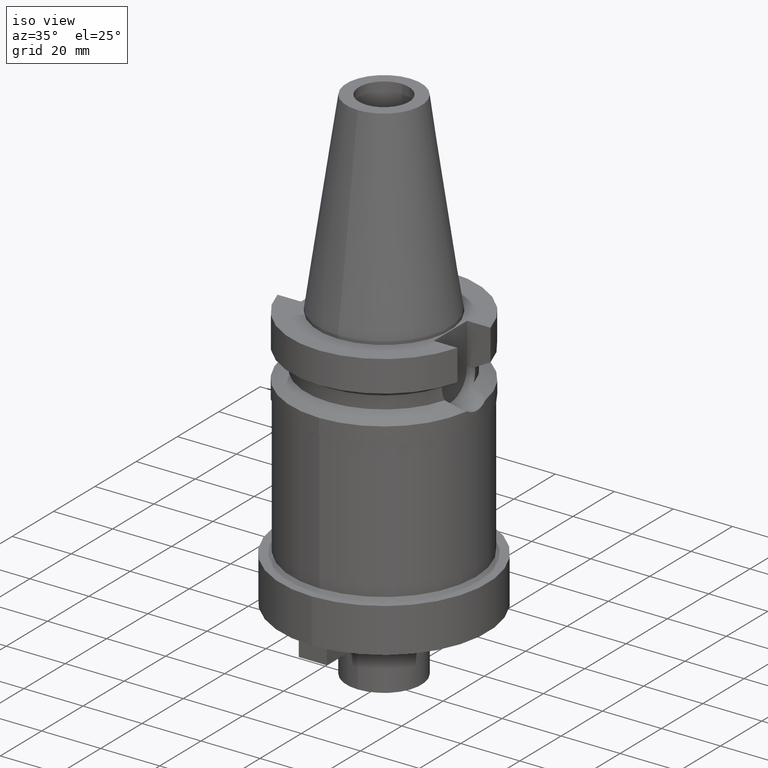
[diagram: clean part render]
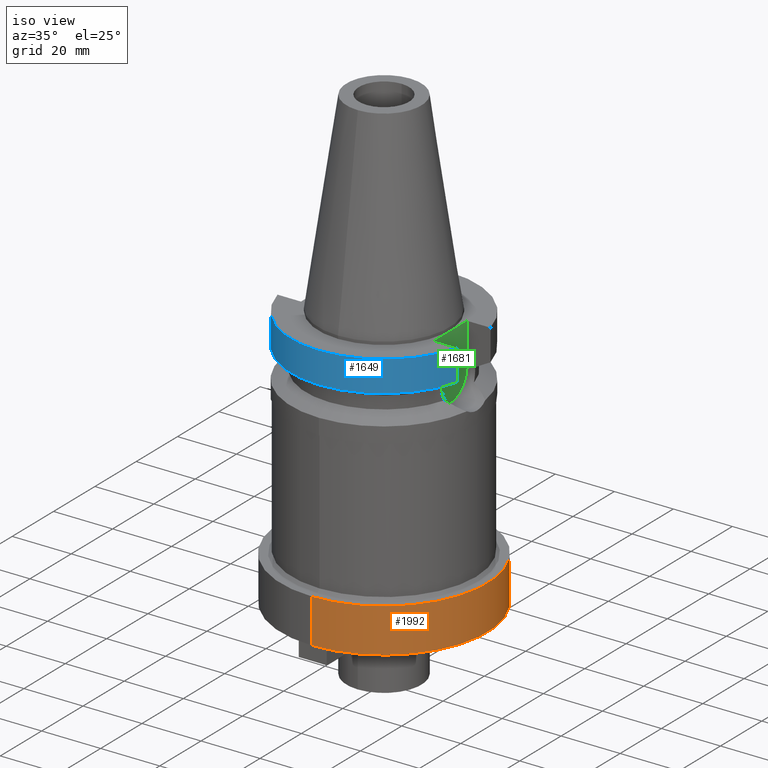
[diagram: same view with three faces highlighted in distinct colors, each labeled with its STEP entity id]
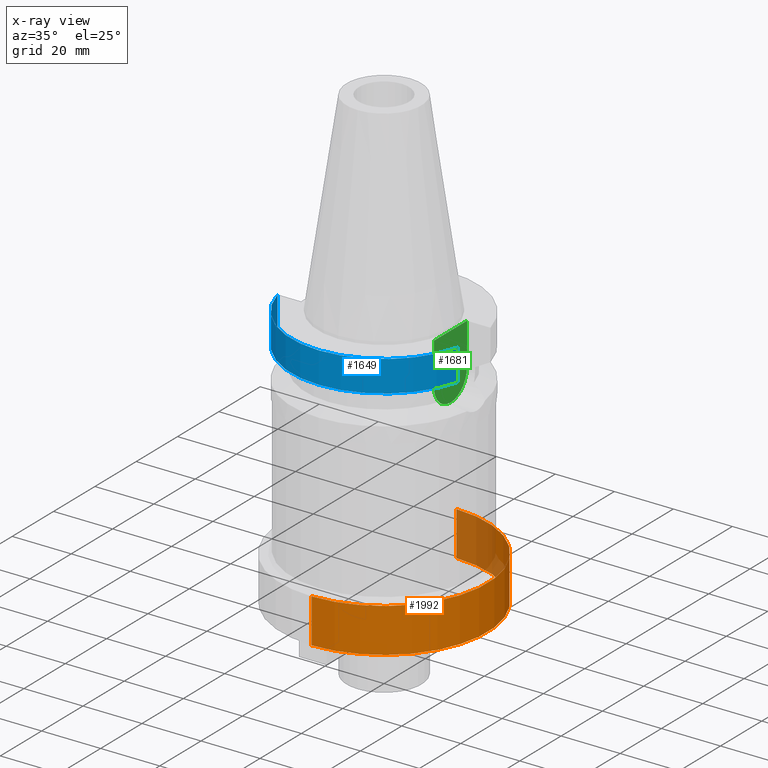
[diagram: x-ray of the same camera — body ghosted, the three highlighted faces saturated]
A machine part, iso view with three faces highlighted in distinct colors.
The next image is the same camera in x-ray (body ghosted, the three faces saturated) — at least one of them is partly hidden behind the body in this view.
Their STEP definitions:

[orange] entity #1992 — the highlighted cylindrical surface (partial cylindrical patch) has radius 35 mm, axis along (0, 0, -1).
#711=CARTESIAN_POINT('',(0.E0,2.134191976874E-14,-7.5E1));
#712=DIRECTION('',(0.E0,0.E0,-1.E0));
#713=DIRECTION('',(0.E0,1.E0,0.E0));
#714=AXIS2_PLACEMENT_3D('',#711,#712,#713);
#735=DIRECTION('',(0.E0,0.E0,-1.E0));
#736=VECTOR('',#735,1.5E1);
#737=CARTESIAN_POINT('',(0.E0,-3.5E1,-7.5E1));
#738=LINE('',#737,#736);
#742=DIRECTION('',(0.E0,0.E0,-1.E0));
#743=VECTOR('',#742,1.5E1);
#744=CARTESIAN_POINT('',(0.E0,3.5E1,-7.5E1));
#745=LINE('',#744,#743);
#749=CARTESIAN_POINT('',(0.E0,2.134191976874E-14,-9.E1));
#750=DIRECTION('',(0.E0,0.E0,1.E0));
#751=DIRECTION('',(0.E0,-1.E0,0.E0));
#752=AXIS2_PLACEMENT_3D('',#749,#750,#751);
#1313=CARTESIAN_POINT('',(0.E0,-3.5E1,-9.E1));
#1314=CARTESIAN_POINT('',(0.E0,3.5E1,-9.E1));
#1315=VERTEX_POINT('',#1313);
#1316=VERTEX_POINT('',#1314);
#1333=CARTESIAN_POINT('',(0.E0,3.5E1,-7.5E1));
#1334=VERTEX_POINT('',#1333);
#1335=CARTESIAN_POINT('',(0.E0,-3.5E1,-7.5E1));
#1336=VERTEX_POINT('',#1335);
#1980=CARTESIAN_POINT('',(0.E0,2.134191976874E-14,7.427E1));
#1981=DIRECTION('',(0.E0,0.E0,-1.E0));
#1982=DIRECTION('',(0.E0,-1.E0,0.E0));
#1983=AXIS2_PLACEMENT_3D('',#1980,#1981,#1982);
#1984=CYLINDRICAL_SURFACE('',#1983,3.5E1);
#1985=ORIENTED_EDGE('',*,*,#1970,.T.);
#1987=ORIENTED_EDGE('',*,*,#1986,.F.);
#1988=ORIENTED_EDGE('',*,*,#1973,.F.);
#1989=ORIENTED_EDGE('',*,*,#1956,.F.);
#1990=EDGE_LOOP('',(#1985,#1987,#1988,#1989));
#1991=FACE_OUTER_BOUND('',#1990,.F.);
#715=CIRCLE('',#714,3.5E1);
#753=CIRCLE('',#752,3.5E1);
#1956=EDGE_CURVE('',#1334,#1336,#715,.T.);
#1970=EDGE_CURVE('',#1334,#1316,#745,.T.);
#1973=EDGE_CURVE('',#1336,#1315,#738,.T.);
#1986=EDGE_CURVE('',#1315,#1316,#753,.T.);
#1992=ADVANCED_FACE('',(#1991),#1984,.T.);

[blue] entity #1649 — the highlighted cylindrical surface (partial cylindrical patch) has radius 31.5 mm, axis along (0, 0, -1).
#138=CARTESIAN_POINT('',(0.E0,2.134191976874E-14,-1.E0));
#139=DIRECTION('',(0.E0,0.E0,-1.E0));
#140=DIRECTION('',(9.667943721520E-1,-2.555555555556E-1,0.E0));
#141=AXIS2_PLACEMENT_3D('',#138,#139,#140);
#146=CARTESIAN_POINT('',(0.E0,2.134191976874E-14,-1.E0));
#147=DIRECTION('',(0.E0,0.E0,-1.E0));
#148=DIRECTION('',(0.E0,-1.E0,0.E0));
#149=AXIS2_PLACEMENT_3D('',#146,#147,#148);
#251=CARTESIAN_POINT('',(0.E0,1.065333950388E-14,-1.156550565267E1));
#252=DIRECTION('',(0.E0,0.E0,1.E0));
#253=DIRECTION('',(-9.667943721520E-1,-2.555555555555E-1,0.E0));
#254=AXIS2_PLACEMENT_3D('',#251,#252,#253);
#259=CARTESIAN_POINT('',(0.E0,1.065333950388E-14,-1.156550565267E1));
#260=DIRECTION('',(0.E0,0.E0,1.E0));
#261=DIRECTION('',(0.E0,-1.E0,0.E0));
#262=AXIS2_PLACEMENT_3D('',#259,#260,#261);
#283=DIRECTION('',(1.806240529809E-8,-6.833227356668E-8,1.E0));
#284=VECTOR('',#283,1.056551215526E1);
#285=CARTESIAN_POINT('',(-3.045402291363E1,-8.049999278034E0,
-1.156551215526E1));
#286=LINE('',#285,#284);
#290=DIRECTION('',(-1.036806166748E-7,-3.922344801178E-7,-9.999999999999E-1));
#291=VECTOR('',#290,1.056546832401E1);
#292=CARTESIAN_POINT('',(3.045402272279E1,-8.05E0,-1.E0));
#293=LINE('',#292,#291);
#1402=CARTESIAN_POINT('',(-3.045402272279E1,-8.05E0,-1.E0));
#1403=VERTEX_POINT('',#1402);
#1404=CARTESIAN_POINT('',(-3.045402291363E1,-8.049999278034E0,
-1.156551215526E1));
#1405=VERTEX_POINT('',#1404);
#1418=CARTESIAN_POINT('',(3.045402272279E1,-8.05E0,-1.E0));
#1419=VERTEX_POINT('',#1418);
#1420=CARTESIAN_POINT('',(3.046064939756E-14,-3.15E1,-1.E0));
#1421=VERTEX_POINT('',#1420);
#1431=CARTESIAN_POINT('',(0.E0,-3.15E1,-1.156550565267E1));
#1432=CARTESIAN_POINT('',(3.045402272279E1,-8.049999999999E0,
-1.156550565267E1));
#1433=VERTEX_POINT('',#1431);
#1434=VERTEX_POINT('',#1432);
#1635=CARTESIAN_POINT('',(0.E0,2.134191976874E-14,7.427E1));
#1636=DIRECTION('',(0.E0,0.E0,-1.E0));
#1637=DIRECTION('',(0.E0,-1.E0,0.E0));
#1638=AXIS2_PLACEMENT_3D('',#1635,#1636,#1637);
#1639=CYLINDRICAL_SURFACE('',#1638,3.15E1);
#1640=ORIENTED_EDGE('',*,*,#1588,.T.);
#1641=ORIENTED_EDGE('',*,*,#1549,.F.);
#1642=ORIENTED_EDGE('',*,*,#1547,.F.);
#1644=ORIENTED_EDGE('',*,*,#1643,.T.);
#1645=ORIENTED_EDGE('',*,*,#1626,.F.);
#1646=ORIENTED_EDGE('',*,*,#1624,.F.);
#1647=EDGE_LOOP('',(#1640,#1641,#1642,#1644,#1645,#1646));
#1648=FACE_OUTER_BOUND('',#1647,.F.);
#142=CIRCLE('',#141,3.15E1);
#150=CIRCLE('',#149,3.15E1);
#255=CIRCLE('',#254,3.15E1);
#263=CIRCLE('',#262,3.15E1);
#1547=EDGE_CURVE('',#1419,#1421,#142,.T.);
#1549=EDGE_CURVE('',#1421,#1403,#150,.T.);
#1588=EDGE_CURVE('',#1405,#1403,#286,.T.);
#1624=EDGE_CURVE('',#1405,#1433,#255,.T.);
#1626=EDGE_CURVE('',#1433,#1434,#263,.T.);
#1643=EDGE_CURVE('',#1419,#1434,#293,.T.);
#1649=ADVANCED_FACE('',(#1648),#1639,.T.);

[green] entity #1681 — the highlighted planar face has unit normal (1, 0, 0).
#124=DIRECTION('',(0.E0,-1.E0,0.E0));
#125=VECTOR('',#124,1.61E1);
#126=CARTESIAN_POINT('',(2.25E1,8.05E0,-1.E0));
#127=LINE('',#126,#125);
#307=DIRECTION('',(0.E0,0.E0,-1.E0));
#308=VECTOR('',#307,1.395E1);
#309=CARTESIAN_POINT('',(2.25E1,8.05E0,-1.E0));
#310=LINE('',#309,#308);
#314=CARTESIAN_POINT('',(2.25E1,0.E0,-1.495E1));
#315=DIRECTION('',(-1.E0,0.E0,0.E0));
#316=DIRECTION('',(0.E0,1.E0,0.E0));
#317=AXIS2_PLACEMENT_3D('',#314,#315,#316);
#322=CARTESIAN_POINT('',(2.25E1,0.E0,-1.495E1));
#323=DIRECTION('',(-1.E0,0.E0,0.E0));
#324=DIRECTION('',(0.E0,0.E0,-1.E0));
#325=AXIS2_PLACEMENT_3D('',#322,#323,#324);
#330=DIRECTION('',(0.E0,0.E0,1.E0));
#331=VECTOR('',#330,1.395E1);
#332=CARTESIAN_POINT('',(2.25E1,-8.05E0,-1.495E1));
#333=LINE('',#332,#331);
#1362=CARTESIAN_POINT('',(2.25E1,-8.05E0,-1.495E1));
#1363=VERTEX_POINT('',#1362);
#1364=CARTESIAN_POINT('',(2.25E1,0.E0,-2.3E1));
#1365=VERTEX_POINT('',#1364);
#1366=CARTESIAN_POINT('',(2.25E1,8.05E0,-1.495E1));
#1367=VERTEX_POINT('',#1366);
#1414=CARTESIAN_POINT('',(2.25E1,8.05E0,-1.E0));
#1415=VERTEX_POINT('',#1414);
#1416=CARTESIAN_POINT('',(2.25E1,-8.05E0,-1.E0));
#1417=VERTEX_POINT('',#1416);
#1666=CARTESIAN_POINT('',(2.25E1,0.E0,0.E0));
#1667=DIRECTION('',(1.E0,0.E0,0.E0));
#1668=DIRECTION('',(0.E0,0.E0,-1.E0));
#1669=AXIS2_PLACEMENT_3D('',#1666,#1667,#1668);
#1670=PLANE('',#1669);
#1671=ORIENTED_EDGE('',*,*,#1543,.F.);
#1673=ORIENTED_EDGE('',*,*,#1672,.T.);
#1675=ORIENTED_EDGE('',*,*,#1674,.T.);
#1677=ORIENTED_EDGE('',*,*,#1676,.T.);
#1678=ORIENTED_EDGE('',*,*,#1659,.T.);
#1679=EDGE_LOOP('',(#1671,#1673,#1675,#1677,#1678));
#1680=FACE_OUTER_BOUND('',#1679,.F.);
#318=CIRCLE('',#317,8.05E0);
#326=CIRCLE('',#325,8.05E0);
#1543=EDGE_CURVE('',#1415,#1417,#127,.T.);
#1659=EDGE_CURVE('',#1363,#1417,#333,.T.);
#1672=EDGE_CURVE('',#1415,#1367,#310,.T.);
#1674=EDGE_CURVE('',#1367,#1365,#318,.T.);
#1676=EDGE_CURVE('',#1365,#1363,#326,.T.);
#1681=ADVANCED_FACE('',(#1680),#1670,.T.);